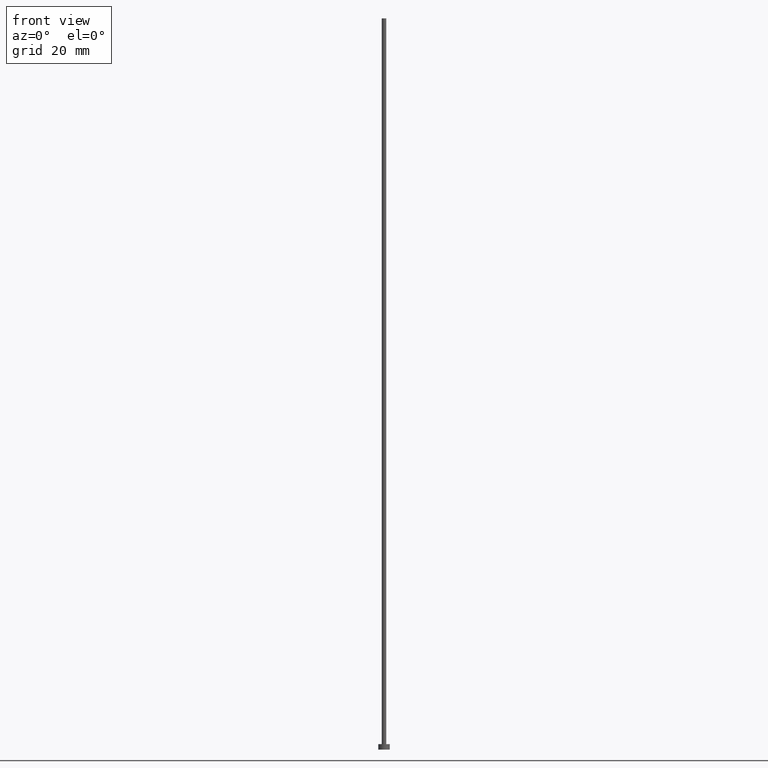
[diagram: clean part render]
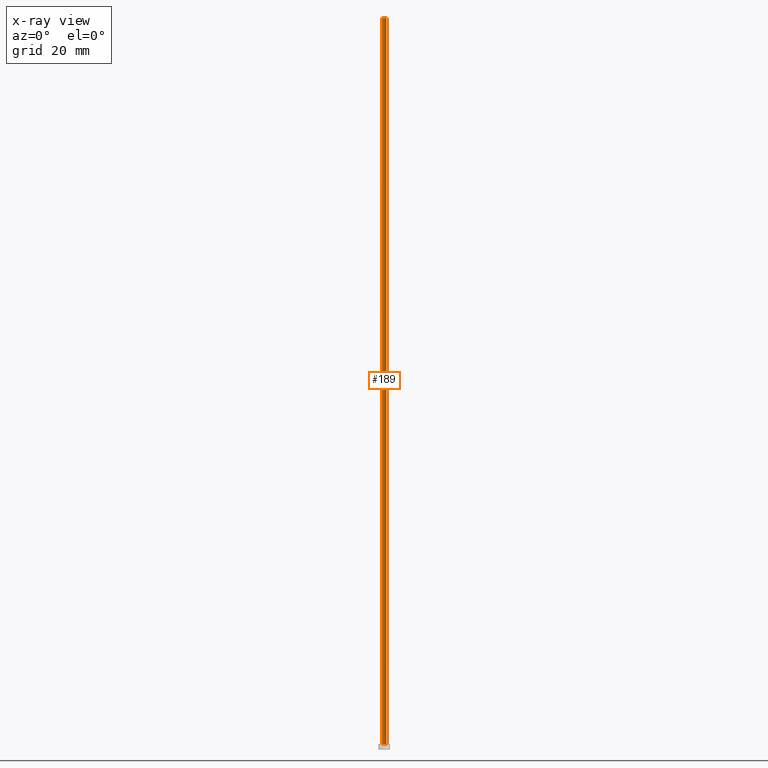
[diagram: x-ray — body ghosted, one internal face saturated and labeled with its STEP entity id]
A machine part, front view, then the same camera in x-ray: the body is ghosted and one INTERNAL B-rep face — a face not visible from any outside direction — is saturated and labeled: STEP entity #189.
In plain terms, the highlighted cylindrical surface (edge-blend (fillet) strip) has radius 0.5 mm, axis along (-0, -0, -1).
Its self-contained STEP definition (entity closure, byte-faithful):
#1 = LINE ( 'NONE', #216, #159 ) ;
#7 = ORIENTED_EDGE ( 'NONE', *, *, #71, .F. ) ;
#17 = CARTESIAN_POINT ( 'NONE',  ( -0.5000000000000000000, 0.000000000000000000, 1.199999999999999956 ) ) ;
#23 = CARTESIAN_POINT ( 'NONE',  ( 0.000000000000000000, 0.000000000000000000, 160.0000000000000284 ) ) ;
#24 = DIRECTION ( 'NONE',  ( -1.000000000000000000, 0.000000000000000000, 0.000000000000000000 ) ) ;
#26 = VERTEX_POINT ( 'NONE', #17 ) ;
#38 = EDGE_CURVE ( 'NONE', #112, #111, #109, .T. ) ;
#42 = DIRECTION ( 'NONE',  ( -0.000000000000000000, -0.000000000000000000, -1.000000000000000000 ) ) ;
#45 = CARTESIAN_POINT ( 'NONE',  ( 0.5000000000000000000, 6.123233995736766036E-17, 160.0000000000000284 ) ) ;
#51 = ORIENTED_EDGE ( 'NONE', *, *, #211, .F. ) ;
#57 = FACE_OUTER_BOUND ( 'NONE', #175, .T. ) ;
#59 = DIRECTION ( 'NONE',  ( -0.000000000000000000, -0.000000000000000000, -1.000000000000000000 ) ) ;
#60 = DIRECTION ( 'NONE',  ( 0.000000000000000000, 0.000000000000000000, 1.000000000000000000 ) ) ;
#66 = CIRCLE ( 'NONE', #191, 0.5000000000000000000 ) ;
#71 = EDGE_CURVE ( 'NONE', #112, #119, #179, .T. ) ;
#80 = DIRECTION ( 'NONE',  ( 1.000000000000000000, 0.000000000000000000, 0.000000000000000000 ) ) ;
#109 = LINE ( 'NONE', #229, #205 ) ;
#111 = VERTEX_POINT ( 'NONE', #198 ) ;
#112 = VERTEX_POINT ( 'NONE', #45 ) ;
#119 = VERTEX_POINT ( 'NONE', #174 ) ;
#140 = DIRECTION ( 'NONE',  ( 0.000000000000000000, 0.000000000000000000, 1.000000000000000000 ) ) ;
#144 = AXIS2_PLACEMENT_3D ( 'NONE', #23, #42, #24 ) ;
#157 = CARTESIAN_POINT ( 'NONE',  ( 0.000000000000000000, 0.000000000000000000, 160.0000000000000284 ) ) ;
#159 = VECTOR ( 'NONE', #59, 1000.000000000000000 ) ;
#168 = DIRECTION ( 'NONE',  ( -0.000000000000000000, -0.000000000000000000, -1.000000000000000000 ) ) ;
#174 = CARTESIAN_POINT ( 'NONE',  ( -0.5000000000000000000, 0.000000000000000000, 160.0000000000000284 ) ) ;
#175 = EDGE_LOOP ( 'NONE', ( #7, #230, #220, #51 ) ) ;
#176 = CARTESIAN_POINT ( 'NONE',  ( 0.000000000000000000, 0.000000000000000000, 1.199999999999999956 ) ) ;
#179 = CIRCLE ( 'NONE', #248, 0.5000000000000000000 ) ;
#189 = ADVANCED_FACE ( 'NONE', ( #57 ), #199, .T. ) ;
#191 = AXIS2_PLACEMENT_3D ( 'NONE', #176, #140, #219 ) ;
#198 = CARTESIAN_POINT ( 'NONE',  ( 0.5000000000000000000, 6.123233995736766036E-17, 1.199999999999999956 ) ) ;
#199 = CYLINDRICAL_SURFACE ( 'NONE', #144, 0.5000000000000000000 ) ;
#205 = VECTOR ( 'NONE', #168, 1000.000000000000000 ) ;
#211 = EDGE_CURVE ( 'NONE', #119, #26, #1, .T. ) ;
#216 = CARTESIAN_POINT ( 'NONE',  ( -0.5000000000000000000, 0.000000000000000000, 160.0000000000000284 ) ) ;
#219 = DIRECTION ( 'NONE',  ( 1.000000000000000000, 0.000000000000000000, 0.000000000000000000 ) ) ;
#220 = ORIENTED_EDGE ( 'NONE', *, *, #235, .T. ) ;
#229 = CARTESIAN_POINT ( 'NONE',  ( 0.5000000000000000000, 6.123233995736766036E-17, 160.0000000000000284 ) ) ;
#230 = ORIENTED_EDGE ( 'NONE', *, *, #38, .T. ) ;
#235 = EDGE_CURVE ( 'NONE', #111, #26, #66, .T. ) ;
#248 = AXIS2_PLACEMENT_3D ( 'NONE', #157, #60, #80 ) ;